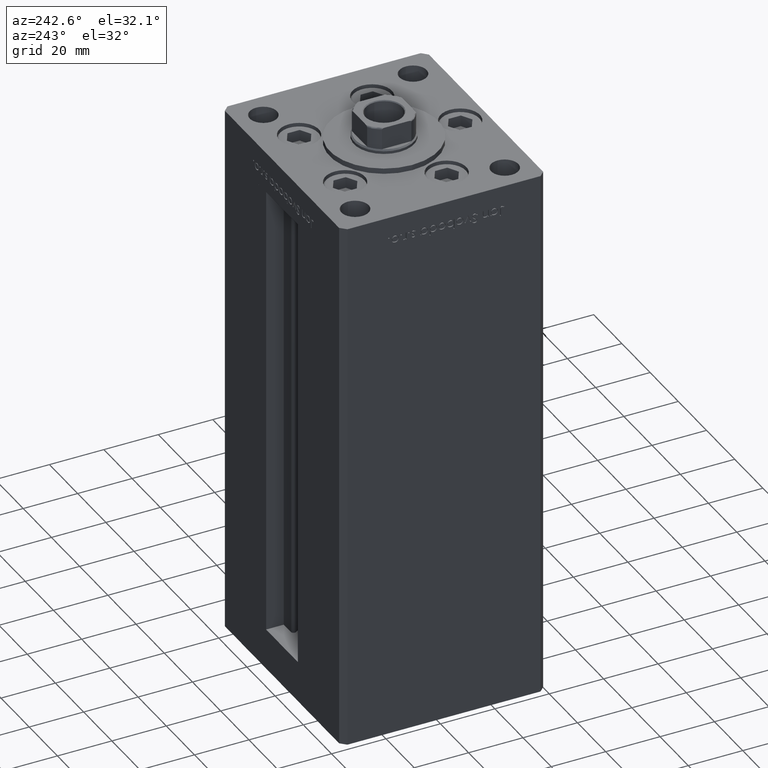
[diagram: clean part render]
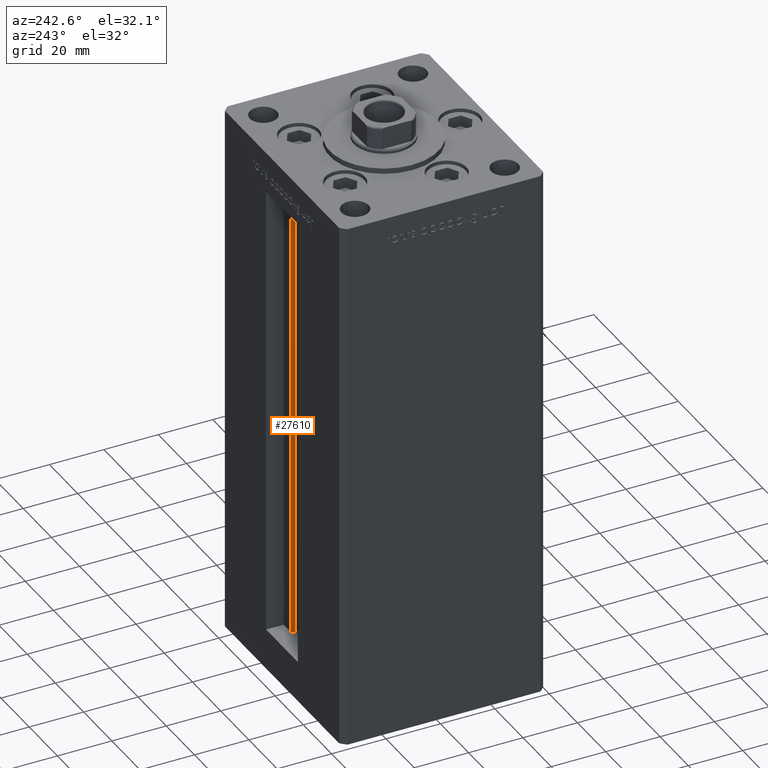
[diagram: same view with one face highlighted and labeled with its STEP entity id]
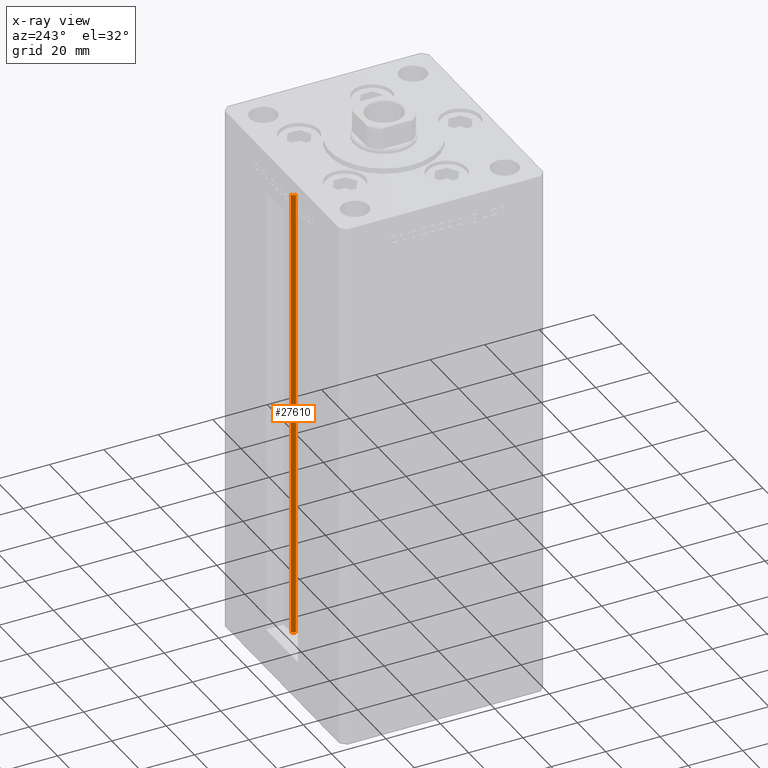
[diagram: x-ray of the same camera — body ghosted, the highlighted face saturated]
A machine part, auxiliary view. The second image highlights one B-rep face of the part: STEP entity #27610.
The next image is the same camera in x-ray: the body ghosted, the highlighted face saturated — about 0% of this face is hidden behind the body in this view.
In plain terms, the highlighted cylindrical surface (edge-blend (fillet) strip) has radius 0.9333 mm, axis along (0, 0, 1).
Its self-contained STEP definition (entity closure, byte-faithful):
#614 = CIRCLE ( 'NONE', #18291, 0.9333333333340015914 ) ;
#1455 = EDGE_CURVE ( 'NONE', #45027, #48479, #41745, .T. ) ;
#6543 = FACE_OUTER_BOUND ( 'NONE', #34674, .T. ) ;
#8717 = CARTESIAN_POINT ( 'NONE',  ( 6.183333333333999704, 30.06666666666599141, 168.5000000000000000 ) ) ;
#8979 = DIRECTION ( 'NONE',  ( 0.000000000000000000, 0.000000000000000000, -1.000000000000000000 ) ) ;
#10899 = VERTEX_POINT ( 'NONE', #23233 ) ;
#11318 = CARTESIAN_POINT ( 'NONE',  ( 6.183333333333999704, 30.99999999999999289, 0.000000000000000000 ) ) ;
#15281 = LINE ( 'NONE', #11318, #20806 ) ;
#16918 = DIRECTION ( 'NONE',  ( 1.000000000000000000, 0.000000000000000000, 0.000000000000000000 ) ) ;
#17463 = CARTESIAN_POINT ( 'NONE',  ( 6.183333333333999704, 30.99999999999999289, 0.000000000000000000 ) ) ;
#17774 = ORIENTED_EDGE ( 'NONE', *, *, #33216, .F. ) ;
#18291 = AXIS2_PLACEMENT_3D ( 'NONE', #49742, #46834, #25750 ) ;
#18571 = ORIENTED_EDGE ( 'NONE', *, *, #19611, .T. ) ;
#18718 = CYLINDRICAL_SURFACE ( 'NONE', #48450, 0.9333333333340015914 ) ;
#19611 = EDGE_CURVE ( 'NONE', #10899, #45027, #25884, .T. ) ;
#20806 = VECTOR ( 'NONE', #31405, 1000.000000000000000 ) ;
#21666 = DIRECTION ( 'NONE',  ( -0.000000000000000000, -0.000000000000000000, 1.000000000000000000 ) ) ;
#22676 = DIRECTION ( 'NONE',  ( 1.000000000000000000, 0.000000000000000000, 0.000000000000000000 ) ) ;
#23233 = CARTESIAN_POINT ( 'NONE',  ( 5.375042956467943611, 29.59999999999899245, 0.000000000000000000 ) ) ;
#23400 = VERTEX_POINT ( 'NONE', #17463 ) ;
#25731 = AXIS2_PLACEMENT_3D ( 'NONE', #8717, #8979, #16918 ) ;
#25750 = DIRECTION ( 'NONE',  ( 1.000000000000000000, 0.000000000000000000, 0.000000000000000000 ) ) ;
#25768 = CARTESIAN_POINT ( 'NONE',  ( 5.375042956467944499, 29.59999999999898890, 168.5000000000000000 ) ) ;
#25884 = LINE ( 'NONE', #42243, #38224 ) ;
#27610 = ADVANCED_FACE ( 'NONE', ( #6543 ), #18718, .T. ) ;
#30349 = DIRECTION ( 'NONE',  ( -0.000000000000000000, -0.000000000000000000, 1.000000000000000000 ) ) ;
#31405 = DIRECTION ( 'NONE',  ( -0.000000000000000000, -0.000000000000000000, 1.000000000000000000 ) ) ;
#32383 = ORIENTED_EDGE ( 'NONE', *, *, #1455, .T. ) ;
#32854 = EDGE_CURVE ( 'NONE', #23400, #48479, #15281, .T. ) ;
#33216 = EDGE_CURVE ( 'NONE', #10899, #23400, #614, .T. ) ;
#34674 = EDGE_LOOP ( 'NONE', ( #50044, #17774, #18571, #32383 ) ) ;
#38224 = VECTOR ( 'NONE', #21666, 1000.000000000000000 ) ;
#41745 = CIRCLE ( 'NONE', #25731, 0.9333333333340015914 ) ;
#42243 = CARTESIAN_POINT ( 'NONE',  ( 5.375042956467943611, 29.59999999999899245, 0.000000000000000000 ) ) ;
#45027 = VERTEX_POINT ( 'NONE', #25768 ) ;
#46834 = DIRECTION ( 'NONE',  ( -0.000000000000000000, -0.000000000000000000, -1.000000000000000000 ) ) ;
#48450 = AXIS2_PLACEMENT_3D ( 'NONE', #51150, #30349, #22676 ) ;
#48479 = VERTEX_POINT ( 'NONE', #51127 ) ;
#49742 = CARTESIAN_POINT ( 'NONE',  ( 6.183333333333999704, 30.06666666666599141, 0.000000000000000000 ) ) ;
#50044 = ORIENTED_EDGE ( 'NONE', *, *, #32854, .F. ) ;
#51127 = CARTESIAN_POINT ( 'NONE',  ( 6.183333333333999704, 30.99999999999999289, 168.5000000000000000 ) ) ;
#51150 = CARTESIAN_POINT ( 'NONE',  ( 6.183333333333999704, 30.06666666666599141, 0.000000000000000000 ) ) ;